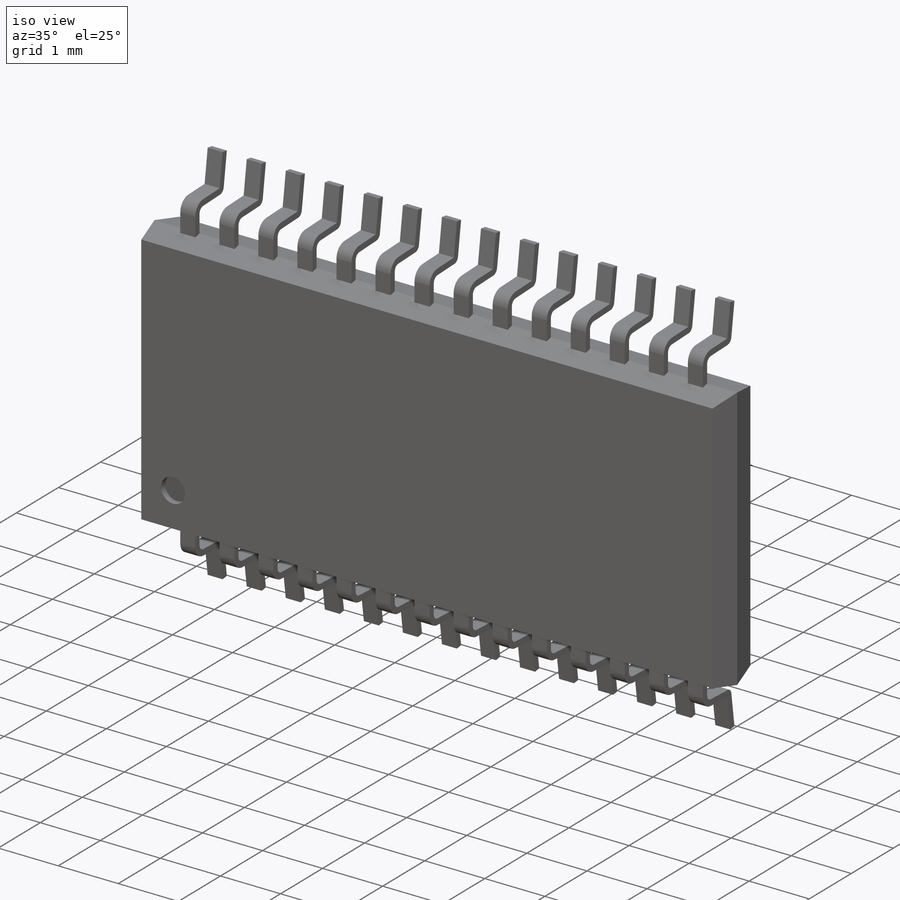
[diagram: iso view]
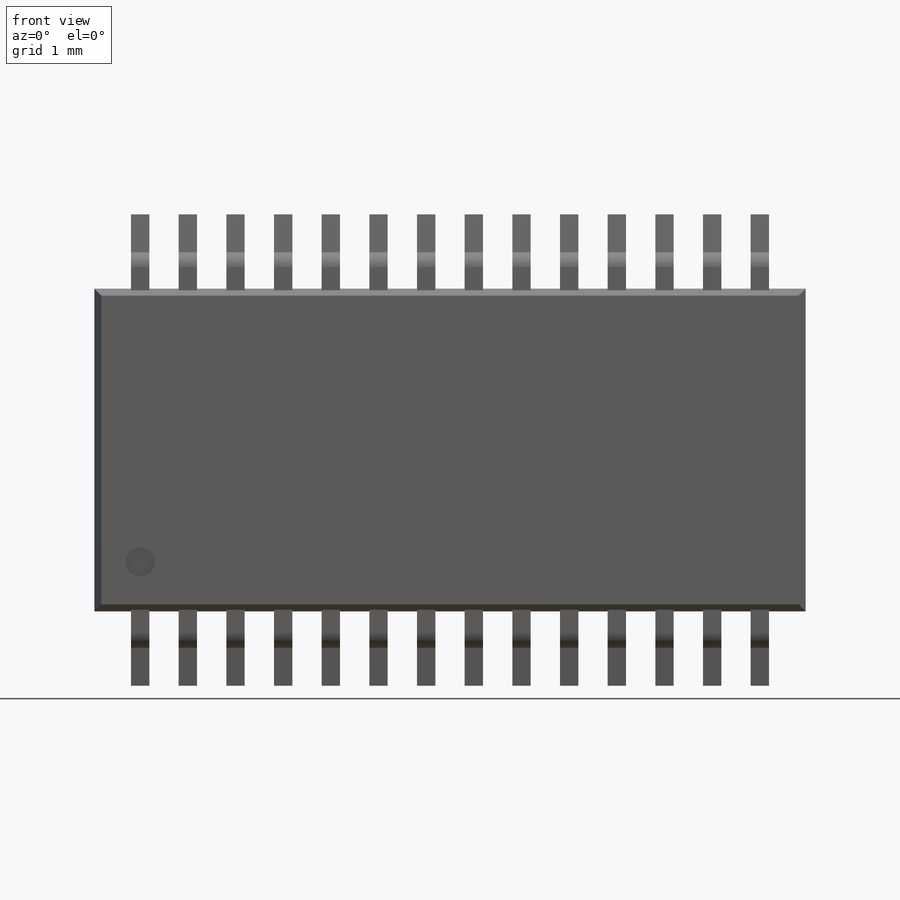
[diagram: front view]
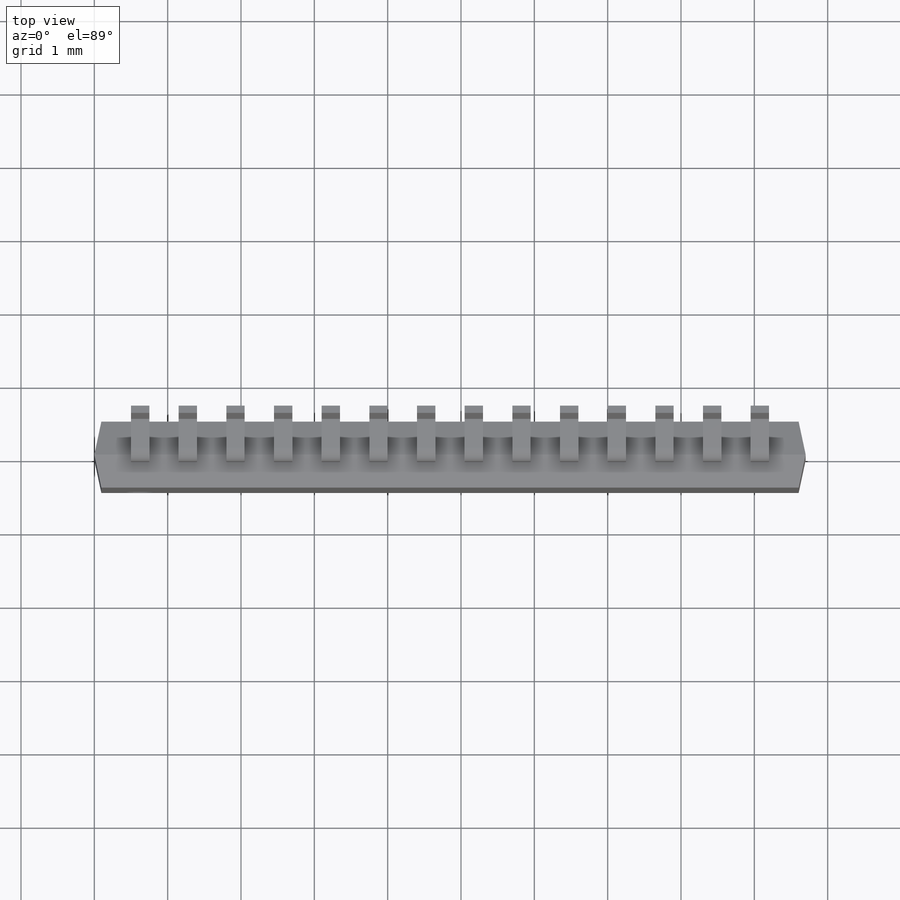
[diagram: top view]
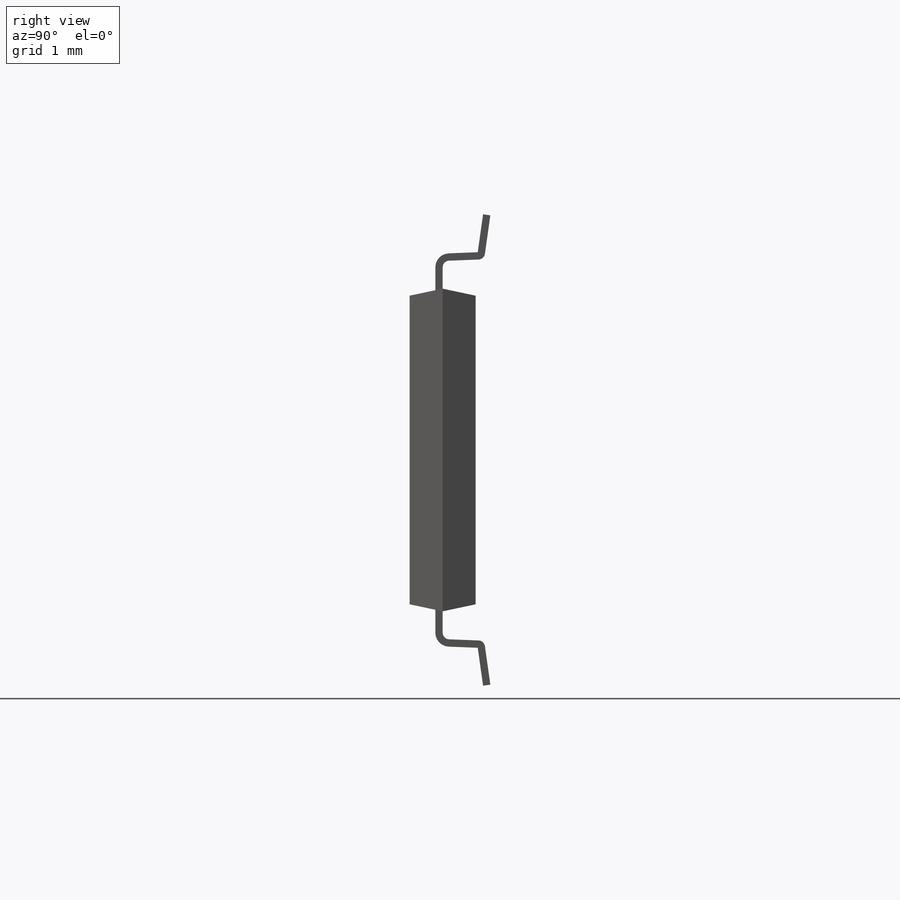
[diagram: right view]
SOLIDWORKS PART (.sldprt)
format: sldprt  version: not decoded by parser v0  size: 396,288 bytes
history: native  units: mm
features: sketch x4, extrude x2, plane x2, material x1, pattern_linear x1, mirror x1, cut_extrude x1 (+13 scaffold rows collapsed)
feature tree (25):
  scaffold x13  (default folders/planes/origin — collapsed)
  material  "Material <not specified>"
  sketch  "Sketch1"  dims[D1=4.4mm D2=9.7mm]
  extrude  "Boss-Extrude1"  Depth=0.45mm
  sketch  "Sketch2"
  extrude  "Boss-Extrude2"  Depth=0.45mm
  plane  "Plane1"  Offset=0.625mm
  sketch  "Sketch3"  dims[c1.D5=0.09mm c1.D6=0.09mm c1.D1=0.6mm c1.D2=1.0mm c1.D3=~4.208699mm c2.D3=8.0deg c2.D4=1.1mm c2.D1=0.25mm c2.D5=0.1mm c2.D6=10.0mm c2.D7=5.0mm]
  pattern_linear  "LPattern1"  Count1=14 Count2=1 Spacing1=0.65mm Spacing2=10mm
  plane  "Plane2"  Offset=2.2mm
  mirror  "Mirror1"
  sketch  "Sketch4"  dims[D1=0.4mm]
  cut_extrude  "Cut-Extrude1"  Depth=0.1mm
decode coverage: 7 of 9 modeling features carry decoded parameters
note: ~ marks probable driven/reference dimensions
note: suppression state not decoded; provenance and decode notes live in map.json
